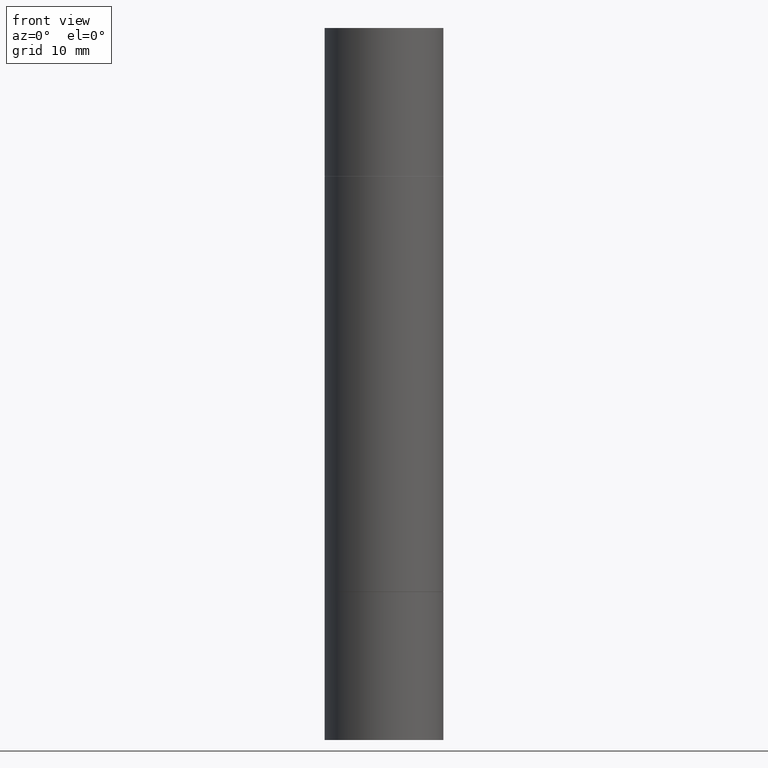
[diagram: clean part render]
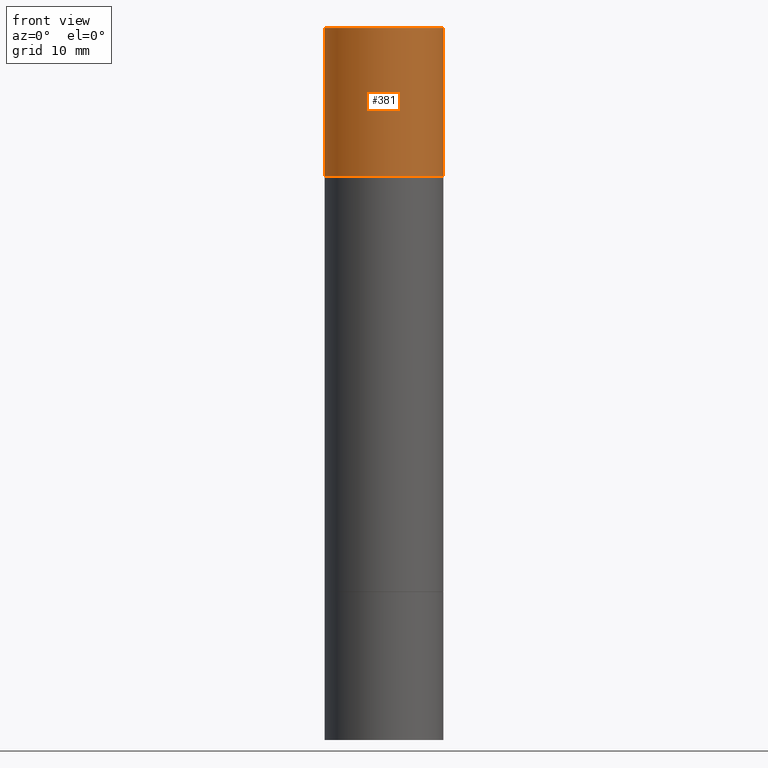
[diagram: same view with one face highlighted and labeled with its STEP entity id]
A machine part, front view. The second image highlights one B-rep face of the part: STEP entity #381.
In plain terms, the highlighted cylindrical surface (partial cylindrical patch) has radius 6.35 mm, axis along (-0, -0, -1).
Its self-contained STEP definition (entity closure, byte-faithful):
#14 = DIRECTION ( 'NONE',  ( -2.445468806185136877E-29, -3.492890411551753071E-15, -1.000000000000000000 ) ) ;
#15 = VERTEX_POINT ( 'NONE', #109 ) ;
#31 = EDGE_CURVE ( 'NONE', #15, #136, #584, .T. ) ;
#39 = DIRECTION ( 'NONE',  ( 1.000000000000000000, -6.982962677686270655E-15, 0.000000000000000000 ) ) ;
#43 = DIRECTION ( 'NONE',  ( -2.445468806185136597E-29, -3.492890411551752677E-15, -1.000000000000000000 ) ) ;
#46 = CARTESIAN_POINT ( 'NONE',  ( 0.2500000000000000000, -3.926683567578497071E-15, -0.6249999999999988898 ) ) ;
#47 = CYLINDRICAL_SURFACE ( 'NONE', #337, 0.2500000000000000000 ) ;
#72 = AXIS2_PLACEMENT_3D ( 'NONE', #399, #78, #383 ) ;
#78 = DIRECTION ( 'NONE',  ( 2.445468806185136597E-29, 3.492890411551752677E-15, 1.000000000000000000 ) ) ;
#82 = CIRCLE ( 'NONE', #72, 0.2500000000000000000 ) ;
#109 = CARTESIAN_POINT ( 'NONE',  ( -0.2500000000000000000, 6.257098548958748880E-16, 1.092739197465709232E-15 ) ) ;
#136 = VERTEX_POINT ( 'NONE', #485 ) ;
#171 = DIRECTION ( 'NONE',  ( 2.445468806185136597E-29, 3.492890411551752677E-15, 1.000000000000000000 ) ) ;
#199 = FACE_OUTER_BOUND ( 'NONE', #361, .T. ) ;
#279 = CARTESIAN_POINT ( 'NONE',  ( 7.336406418555409790E-29, 2.113609062914567177E-18, 1.092739197465705287E-15 ) ) ;
#287 = AXIS2_PLACEMENT_3D ( 'NONE', #279, #171, #451 ) ;
#288 = EDGE_CURVE ( 'NONE', #15, #531, #300, .T. ) ;
#295 = CARTESIAN_POINT ( 'NONE',  ( 0.2500000000000000000, -1.222229829501391170E-14, -2.999999999999999112 ) ) ;
#300 = CIRCLE ( 'NONE', #287, 0.2500000000000000000 ) ;
#316 = ORIENTED_EDGE ( 'NONE', *, *, #288, .F. ) ;
#319 = CARTESIAN_POINT ( 'NONE',  ( -0.2500000000000000000, -8.761433126149462132E-15, -2.999999999999999112 ) ) ;
#322 = CARTESIAN_POINT ( 'NONE',  ( 0.2500000000000000000, -1.743627060358652092E-15, 1.092739197465705287E-15 ) ) ;
#323 = VECTOR ( 'NONE', #14, 39.37007874015748143 ) ;
#337 = AXIS2_PLACEMENT_3D ( 'NONE', #618, #43, #39 ) ;
#361 = EDGE_LOOP ( 'NONE', ( #316, #486, #600, #612 ) ) ;
#381 = ADVANCED_FACE ( 'NONE', ( #199 ), #47, .T. ) ;
#383 = DIRECTION ( 'NONE',  ( 1.000000000000000000, -6.982962677686266711E-15, 0.000000000000000000 ) ) ;
#384 = VERTEX_POINT ( 'NONE', #46 ) ;
#399 = CARTESIAN_POINT ( 'NONE',  ( 5.807988414689700538E-29, -2.180942898156930788E-15, -0.6249999999999988898 ) ) ;
#407 = LINE ( 'NONE', #295, #581 ) ;
#426 = EDGE_CURVE ( 'NONE', #531, #384, #407, .T. ) ;
#451 = DIRECTION ( 'NONE',  ( 1.000000000000000000, -6.982962677686266711E-15, 0.000000000000000000 ) ) ;
#485 = CARTESIAN_POINT ( 'NONE',  ( -0.2500000000000000000, 6.257098548958748880E-16, -0.6249999999999988898 ) ) ;
#486 = ORIENTED_EDGE ( 'NONE', *, *, #31, .T. ) ;
#531 = VERTEX_POINT ( 'NONE', #322 ) ;
#581 = VECTOR ( 'NONE', #670, 39.37007874015748143 ) ;
#584 = LINE ( 'NONE', #319, #323 ) ;
#600 = ORIENTED_EDGE ( 'NONE', *, *, #672, .T. ) ;
#612 = ORIENTED_EDGE ( 'NONE', *, *, #426, .F. ) ;
#618 = CARTESIAN_POINT ( 'NONE',  ( 0.000000000000000000, -1.047655762559234344E-14, -2.999999999999999112 ) ) ;
#670 = DIRECTION ( 'NONE',  ( -2.445468806185136877E-29, -3.492890411551753071E-15, -1.000000000000000000 ) ) ;
#672 = EDGE_CURVE ( 'NONE', #136, #384, #82, .T. ) ;